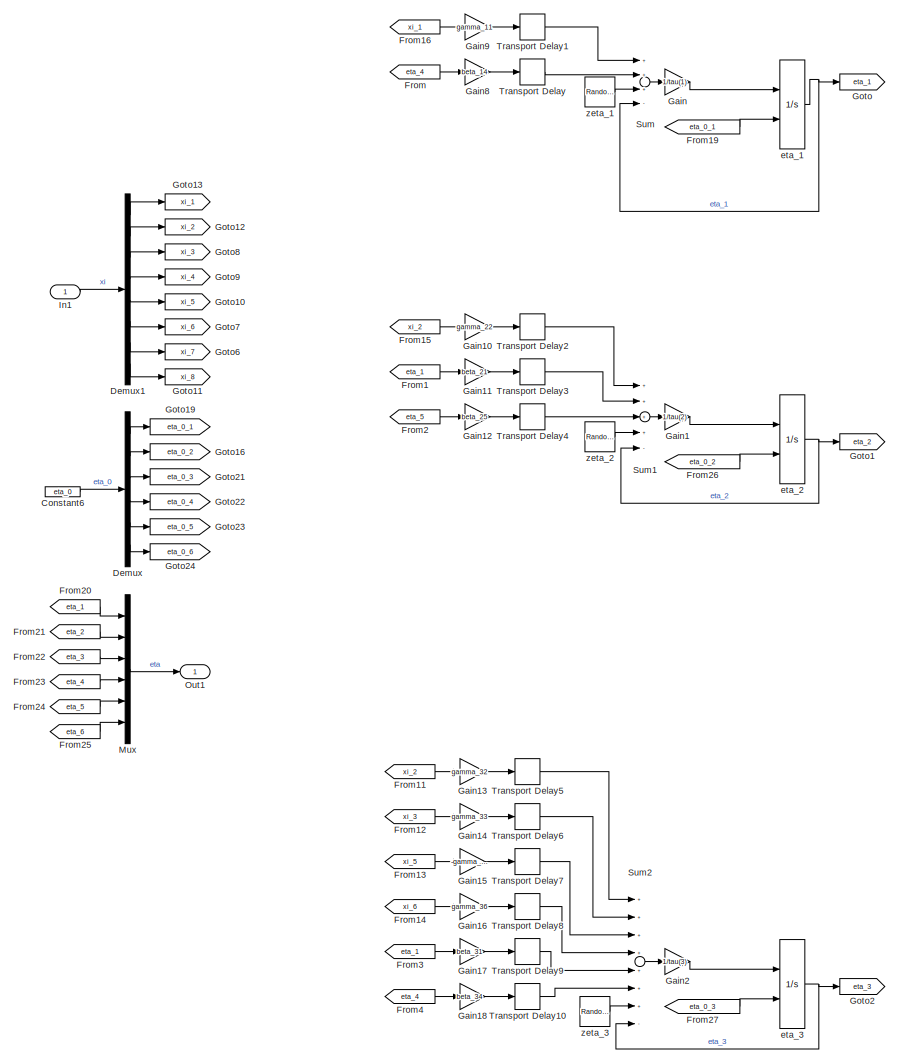
[diagram: root canvas - part 1/2, full width, top band]
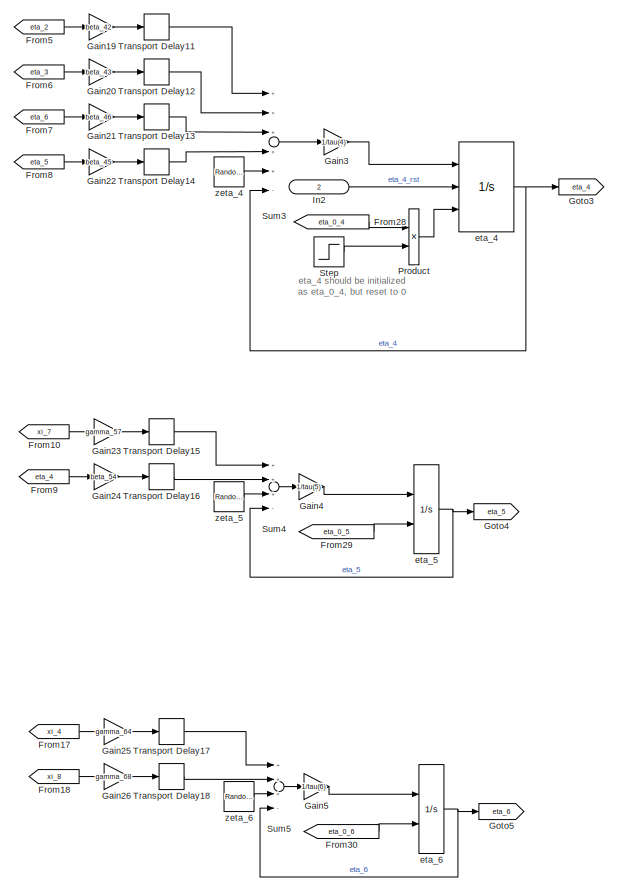
[diagram: root canvas - part 2/2, bottom right region]
MODEL slx_7c5667b295de
KIND model
CONFIG AbsTol = auto
CONFIG EnableMultiTasking = off
CONFIG FixedStep = auto
CONFIG MaxStep = auto
CONFIG MinStep = auto
CONFIG RelTol = 1e-3
CONFIG SampleTimeConstraint = Unconstrained
CONFIG Solver = VariableStepAuto
CONFIG SolverName = VariableStepAuto
CONFIG StartTime = 0.0
CONFIG StopTime = 10.0
BLOCK [Constant] Constant6
  Value = eta_0
BLOCK [Demux] Demux
  DisplayOption = bar
  Outputs = 6
  Ports = [1, 6]
BLOCK [Demux] Demux1
  DisplayOption = bar
  Outputs = 8
  Ports = [1, 8]
BLOCK [From] From
  GotoTag = eta_4
BLOCK [From] From1
  GotoTag = eta_1
BLOCK [From] From10
  GotoTag = xi_7
BLOCK [From] From11
  GotoTag = xi_2
BLOCK [From] From12
  GotoTag = xi_3
BLOCK [From] From13
  GotoTag = xi_5
BLOCK [From] From14
  GotoTag = xi_6
BLOCK [From] From15
  GotoTag = xi_2
BLOCK [From] From16
  GotoTag = xi_1
BLOCK [From] From17
  GotoTag = xi_4
BLOCK [From] From18
  GotoTag = xi_8
BLOCK [From] From19
  GotoTag = eta_0_1
BLOCK [From] From2
  GotoTag = eta_5
BLOCK [From] From20
  GotoTag = eta_1
BLOCK [From] From21
  GotoTag = eta_2
BLOCK [From] From22
  GotoTag = eta_3
BLOCK [From] From23
  GotoTag = eta_4
BLOCK [From] From24
  GotoTag = eta_5
BLOCK [From] From25
  GotoTag = eta_6
BLOCK [From] From26
  GotoTag = eta_0_2
BLOCK [From] From27
  GotoTag = eta_0_3
BLOCK [From] From28
  GotoTag = eta_0_4
BLOCK [From] From29
  GotoTag = eta_0_5
BLOCK [From] From3
  GotoTag = eta_1
BLOCK [From] From30
  GotoTag = eta_0_6
BLOCK [From] From4
  GotoTag = eta_4
BLOCK [From] From5
  GotoTag = eta_2
BLOCK [From] From6
  GotoTag = eta_3
BLOCK [From] From7
  GotoTag = eta_6
BLOCK [From] From8
  GotoTag = eta_5
BLOCK [From] From9
  GotoTag = eta_4
BLOCK [Gain] Gain
  AttributesFormatString = %<Gain>
  Gain = 1/tau(1)
  OutDataTypeStr = Inherit: Inherit via internal rule
  ParamDataTypeStr = Inherit: Inherit via internal rule
  SaturateOnIntegerOverflow = off
BLOCK [Gain] Gain1
  AttributesFormatString = %<Gain>
  Gain = 1/tau(2)
  OutDataTypeStr = Inherit: Inherit via internal rule
  ParamDataTypeStr = Inherit: Inherit via internal rule
  SaturateOnIntegerOverflow = off
BLOCK [Gain] Gain10
  AttributesFormatString = %<Gain>
  Gain = gamma_22
  OutDataTypeStr = Inherit: Inherit via internal rule
  ParamDataTypeStr = Inherit: Inherit via internal rule
  SaturateOnIntegerOverflow = off
BLOCK [Gain] Gain11
  AttributesFormatString = %<Gain>
  Gain = beta_21
  OutDataTypeStr = Inherit: Inherit via internal rule
  ParamDataTypeStr = Inherit: Inherit via internal rule
  SaturateOnIntegerOverflow = off
BLOCK [Gain] Gain12
  AttributesFormatString = %<Gain>
  Gain = beta_25
  OutDataTypeStr = Inherit: Inherit via internal rule
  ParamDataTypeStr = Inherit: Inherit via internal rule
  SaturateOnIntegerOverflow = off
BLOCK [Gain] Gain13
  AttributesFormatString = %<Gain>
  Gain = gamma_32
  OutDataTypeStr = Inherit: Inherit via internal rule
  ParamDataTypeStr = Inherit: Inherit via internal rule
  SaturateOnIntegerOverflow = off
BLOCK [Gain] Gain14
  AttributesFormatString = %<Gain>
  Gain = gamma_33
  OutDataTypeStr = Inherit: Inherit via internal rule
  ParamDataTypeStr = Inherit: Inherit via internal rule
  SaturateOnIntegerOverflow = off
BLOCK [Gain] Gain15
  AttributesFormatString = %<Gain>
  Gain = -gamma_35
  OutDataTypeStr = Inherit: Inherit via internal rule
  ParamDataTypeStr = Inherit: Inherit via internal rule
  SaturateOnIntegerOverflow = off
BLOCK [Gain] Gain16
  AttributesFormatString = %<Gain>
  Gain = gamma_36
  OutDataTypeStr = Inherit: Inherit via internal rule
  ParamDataTypeStr = Inherit: Inherit via internal rule
  SaturateOnIntegerOverflow = off
BLOCK [Gain] Gain17
  AttributesFormatString = %<Gain>
  Gain = beta_31
  OutDataTypeStr = Inherit: Inherit via internal rule
  ParamDataTypeStr = Inherit: Inherit via internal rule
  SaturateOnIntegerOverflow = off
BLOCK [Gain] Gain18
  AttributesFormatString = %<Gain>
  Gain = beta_34
  OutDataTypeStr = Inherit: Inherit via internal rule
  ParamDataTypeStr = Inherit: Inherit via internal rule
  SaturateOnIntegerOverflow = off
BLOCK [Gain] Gain19
  AttributesFormatString = %<Gain>
  Gain = beta_42
  OutDataTypeStr = Inherit: Inherit via internal rule
  ParamDataTypeStr = Inherit: Inherit via internal rule
  SaturateOnIntegerOverflow = off
BLOCK [Gain] Gain2
  AttributesFormatString = %<Gain>
  Gain = 1/tau(3)
  OutDataTypeStr = Inherit: Inherit via internal rule
  ParamDataTypeStr = Inherit: Inherit via internal rule
  SaturateOnIntegerOverflow = off
BLOCK [Gain] Gain20
  AttributesFormatString = %<Gain>
  Gain = beta_43
  OutDataTypeStr = Inherit: Inherit via internal rule
  ParamDataTypeStr = Inherit: Inherit via internal rule
  SaturateOnIntegerOverflow = off
BLOCK [Gain] Gain21
  AttributesFormatString = %<Gain>
  Gain = beta_46
  OutDataTypeStr = Inherit: Inherit via internal rule
  ParamDataTypeStr = Inherit: Inherit via internal rule
  SaturateOnIntegerOverflow = off
BLOCK [Gain] Gain22
  AttributesFormatString = %<Gain>
  Gain = beta_45
  OutDataTypeStr = Inherit: Inherit via internal rule
  ParamDataTypeStr = Inherit: Inherit via internal rule
  SaturateOnIntegerOverflow = off
BLOCK [Gain] Gain23
  AttributesFormatString = %<Gain>
  Gain = gamma_57
  OutDataTypeStr = Inherit: Inherit via internal rule
  ParamDataTypeStr = Inherit: Inherit via internal rule
  SaturateOnIntegerOverflow = off
BLOCK [Gain] Gain24
  AttributesFormatString = %<Gain>
  Gain = beta_54
  OutDataTypeStr = Inherit: Inherit via internal rule
  ParamDataTypeStr = Inherit: Inherit via internal rule
  SaturateOnIntegerOverflow = off
BLOCK [Gain] Gain25
  AttributesFormatString = %<Gain>
  Gain = gamma_64
  OutDataTypeStr = Inherit: Inherit via internal rule
  ParamDataTypeStr = Inherit: Inherit via internal rule
  SaturateOnIntegerOverflow = off
BLOCK [Gain] Gain26
  AttributesFormatString = %<Gain>
  Gain = gamma_68
  OutDataTypeStr = Inherit: Inherit via internal rule
  ParamDataTypeStr = Inherit: Inherit via internal rule
  SaturateOnIntegerOverflow = off
BLOCK [Gain] Gain3
  AttributesFormatString = %<Gain>
  Gain = 1/tau(4)
  OutDataTypeStr = Inherit: Inherit via internal rule
  ParamDataTypeStr = Inherit: Inherit via internal rule
  SaturateOnIntegerOverflow = off
BLOCK [Gain] Gain4
  AttributesFormatString = %<Gain>
  Gain = 1/tau(5)
  OutDataTypeStr = Inherit: Inherit via internal rule
  ParamDataTypeStr = Inherit: Inherit via internal rule
  SaturateOnIntegerOverflow = off
BLOCK [Gain] Gain5
  AttributesFormatString = %<Gain>
  Gain = 1/tau(6)
  OutDataTypeStr = Inherit: Inherit via internal rule
  ParamDataTypeStr = Inherit: Inherit via internal rule
  SaturateOnIntegerOverflow = off
BLOCK [Gain] Gain8
  AttributesFormatString = %<Gain>
  Gain = beta_14
  OutDataTypeStr = Inherit: Inherit via internal rule
  ParamDataTypeStr = Inherit: Inherit via internal rule
  SaturateOnIntegerOverflow = off
BLOCK [Gain] Gain9
  AttributesFormatString = %<Gain>
  Gain = gamma_11
  OutDataTypeStr = Inherit: Inherit via internal rule
  ParamDataTypeStr = Inherit: Inherit via internal rule
  SaturateOnIntegerOverflow = off
BLOCK [Goto] Goto
  GotoTag = eta_1
BLOCK [Goto] Goto1
  GotoTag = eta_2
BLOCK [Goto] Goto10
  GotoTag = xi_5
BLOCK [Goto] Goto11
  GotoTag = xi_8
BLOCK [Goto] Goto12
  GotoTag = xi_2
BLOCK [Goto] Goto13
  GotoTag = xi_1
BLOCK [Goto] Goto16
  GotoTag = eta_0_2
BLOCK [Goto] Goto19
  GotoTag = eta_0_1
BLOCK [Goto] Goto2
  GotoTag = eta_3
BLOCK [Goto] Goto21
  GotoTag = eta_0_3
BLOCK [Goto] Goto22
  GotoTag = eta_0_4
BLOCK [Goto] Goto23
  GotoTag = eta_0_5
BLOCK [Goto] Goto24
  GotoTag = eta_0_6
BLOCK [Goto] Goto3
  GotoTag = eta_4
BLOCK [Goto] Goto4
  GotoTag = eta_5
BLOCK [Goto] Goto5
  GotoTag = eta_6
BLOCK [Goto] Goto6
  GotoTag = xi_7
BLOCK [Goto] Goto7
  GotoTag = xi_6
BLOCK [Goto] Goto8
  GotoTag = xi_3
BLOCK [Goto] Goto9
  GotoTag = xi_4
BLOCK [Inport] In1
  IconDisplay = Signal name
BLOCK [Inport] In2
  IconDisplay = Signal name
  Port = 2
BLOCK [Mux] Mux
  DisplayOption = bar
  Inputs = 6
  Ports = [6, 1]
BLOCK [Outport] Out1
  IconDisplay = Signal name
BLOCK [Product] Product
  InputSameDT = off
  OutDataTypeStr = Inherit: Inherit via internal rule
  Ports = [2, 1]
  RndMeth = Floor
  SaturateOnIntegerOverflow = off
BLOCK [Step] Step
  After = 0
  Before = 1
  SampleTime = 0
  Time = 0.1
BLOCK [Sum] Sum
  InputSameDT = off
  Inputs = +++-
  OutDataTypeStr = Inherit: Inherit via internal rule
  Ports = [4, 1]
  SaturateOnIntegerOverflow = off
BLOCK [Sum] Sum1
  InputSameDT = off
  Inputs = ++++-
  OutDataTypeStr = Inherit: Inherit via internal rule
  Ports = [5, 1]
  SaturateOnIntegerOverflow = off
BLOCK [Sum] Sum2
  InputSameDT = off
  Inputs = +++++++-
  OutDataTypeStr = Inherit: Inherit via internal rule
  Ports = [8, 1]
  SaturateOnIntegerOverflow = off
BLOCK [Sum] Sum3
  InputSameDT = off
  Inputs = +++++-
  OutDataTypeStr = Inherit: Inherit via internal rule
  Ports = [6, 1]
  SaturateOnIntegerOverflow = off
BLOCK [Sum] Sum4
  InputSameDT = off
  Inputs = +++-
  OutDataTypeStr = Inherit: Inherit via internal rule
  Ports = [4, 1]
  SaturateOnIntegerOverflow = off
BLOCK [Sum] Sum5
  InputSameDT = off
  Inputs = +++-
  OutDataTypeStr = Inherit: Inherit via internal rule
  Ports = [4, 1]
  SaturateOnIntegerOverflow = off
BLOCK [TransportDelay] Transport Delay
  AttributesFormatString = %<DelayTime>
  DelayTime = theta(16)
  Ports = [1, 1]
BLOCK [TransportDelay] Transport Delay1
  AttributesFormatString = %<DelayTime>
  DelayTime = theta(1)
  Ports = [1, 1]
BLOCK [TransportDelay] Transport Delay10
  AttributesFormatString = %<DelayTime>
  DelayTime = theta(13)
  Ports = [1, 1]
BLOCK [TransportDelay] Transport Delay11
  AttributesFormatString = %<DelayTime>
  DelayTime = theta(6)
  Ports = [1, 1]
BLOCK [TransportDelay] Transport Delay12
  AttributesFormatString = %<DelayTime>
  DelayTime = theta(8)
  Ports = [1, 1]
BLOCK [TransportDelay] Transport Delay13
  AttributesFormatString = %<DelayTime>
  DelayTime = theta(17)
  Ports = [1, 1]
BLOCK [TransportDelay] Transport Delay14
  AttributesFormatString = %<DelayTime>
  DelayTime = theta(19)
  Ports = [1, 1]
BLOCK [TransportDelay] Transport Delay15
  AttributesFormatString = %<DelayTime>
  DelayTime = theta(15)
  Ports = [1, 1]
BLOCK [TransportDelay] Transport Delay16
  AttributesFormatString = %<DelayTime>
  DelayTime = theta(12)
  Ports = [1, 1]
BLOCK [TransportDelay] Transport Delay17
  AttributesFormatString = %<DelayTime>
  DelayTime = theta(11)
  Ports = [1, 1]
BLOCK [TransportDelay] Transport Delay18
  AttributesFormatString = %<DelayTime>
  DelayTime = theta(18)
  Ports = [1, 1]
BLOCK [TransportDelay] Transport Delay2
  AttributesFormatString = %<DelayTime>
  DelayTime = theta(4)
  Ports = [1, 1]
BLOCK [TransportDelay] Transport Delay3
  AttributesFormatString = %<DelayTime>
  DelayTime = theta(2)
  Ports = [1, 1]
BLOCK [TransportDelay] Transport Delay4
  AttributesFormatString = %<DelayTime>
  DelayTime = theta(14)
  Ports = [1, 1]
BLOCK [TransportDelay] Transport Delay5
  AttributesFormatString = %<DelayTime>
  DelayTime = theta(5)
  Ports = [1, 1]
BLOCK [TransportDelay] Transport Delay6
  AttributesFormatString = %<DelayTime>
  DelayTime = theta(7)
  Ports = [1, 1]
BLOCK [TransportDelay] Transport Delay7
  AttributesFormatString = %<DelayTime>
  DelayTime = theta(9)
  Ports = [1, 1]
BLOCK [TransportDelay] Transport Delay8
  AttributesFormatString = %<DelayTime>
  DelayTime = theta(10)
  Ports = [1, 1]
BLOCK [TransportDelay] Transport Delay9
  AttributesFormatString = %<DelayTime>
  DelayTime = theta(3)
  Ports = [1, 1]
BLOCK [Integrator] eta_1
  ContinuousStateAttributes = 'eta_1'
  InitialCondition = eta_0(1)
  InitialConditionSource = external
  LimitOutput = on
  LowerSaturationLimit = 0
  Ports = [2, 1]
  UpperSaturationLimit = 100
BLOCK [Integrator] eta_2
  ContinuousStateAttributes = 'eta_2'
  InitialCondition = eta_0(1)
  InitialConditionSource = external
  LimitOutput = on
  LowerSaturationLimit = 0
  Ports = [2, 1]
  UpperSaturationLimit = 100
BLOCK [Integrator] eta_3
  ContinuousStateAttributes = 'eta_3'
  InitialCondition = eta_0(1)
  InitialConditionSource = external
  LimitOutput = on
  LowerSaturationLimit = 0
  Ports = [2, 1]
  UpperSaturationLimit = 100
BLOCK [Integrator] eta_4
  ContinuousStateAttributes = 'eta_4'
  ExternalReset = rising
  InitialCondition = eta_0(1)
  InitialConditionSource = external
  LimitOutput = on
  LowerSaturationLimit = 0
  Ports = [3, 1]
  UpperSaturationLimit = 100
BLOCK [Integrator] eta_5
  ContinuousStateAttributes = 'eta_5'
  InitialCondition = eta_0(1)
  InitialConditionSource = external
  LimitOutput = on
  LowerSaturationLimit = 0
  Ports = [2, 1]
  UpperSaturationLimit = 100
BLOCK [Integrator] eta_6
  ContinuousStateAttributes = 'eta_6'
  InitialCondition = eta_0(1)
  InitialConditionSource = external
  LimitOutput = on
  LowerSaturationLimit = 0
  Ports = [2, 1]
  UpperSaturationLimit = 100
BLOCK [RandomNumber] zeta_1
  SampleTime = 0.1
  Variance = zeta_var
BLOCK [RandomNumber] zeta_2
  SampleTime = 0.1
  Variance = zeta_var
BLOCK [RandomNumber] zeta_3
  SampleTime = 0.1
  Variance = zeta_var
BLOCK [RandomNumber] zeta_4
  SampleTime = 0.1
  Variance = zeta_var
BLOCK [RandomNumber] zeta_5
  SampleTime = 0.1
  Variance = zeta_var
BLOCK [RandomNumber] zeta_6
  SampleTime = 0.1
  Variance = zeta_var
ANNOTATION (root): eta_4 should be initialized as eta_0_4, but reset to 0
LINE Constant6:1 -> Demux:1
LINE Demux1:1 -> Goto13:1
LINE Demux1:2 -> Goto12:1
LINE Demux1:3 -> Goto8:1
LINE Demux1:4 -> Goto9:1
LINE Demux1:5 -> Goto10:1
LINE Demux1:6 -> Goto7:1
LINE Demux1:7 -> Goto6:1
LINE Demux1:8 -> Goto11:1
LINE Demux:1 -> Goto19:1
LINE Demux:2 -> Goto16:1
LINE Demux:3 -> Goto21:1
LINE Demux:4 -> Goto22:1
LINE Demux:5 -> Goto23:1
LINE Demux:6 -> Goto24:1
LINE From10:1 -> Gain23:1
LINE From11:1 -> Gain13:1
LINE From12:1 -> Gain14:1
LINE From13:1 -> Gain15:1
LINE From14:1 -> Gain16:1
LINE From15:1 -> Gain10:1
LINE From16:1 -> Gain9:1
LINE From17:1 -> Gain25:1
LINE From18:1 -> Gain26:1
LINE From19:1 -> eta_1:2
LINE From1:1 -> Gain11:1
LINE From20:1 -> Mux:1
LINE From21:1 -> Mux:2
LINE From22:1 -> Mux:3
LINE From23:1 -> Mux:4
LINE From24:1 -> Mux:5
LINE From25:1 -> Mux:6
LINE From26:1 -> eta_2:2
LINE From27:1 -> eta_3:2
LINE From28:1 -> Product:1
LINE From29:1 -> eta_5:2
LINE From2:1 -> Gain12:1
LINE From30:1 -> eta_6:2
LINE From3:1 -> Gain17:1
LINE From4:1 -> Gain18:1
LINE From5:1 -> Gain19:1
LINE From6:1 -> Gain20:1
LINE From7:1 -> Gain21:1
LINE From8:1 -> Gain22:1
LINE From9:1 -> Gain24:1
LINE From:1 -> Gain8:1
LINE Gain10:1 -> Transport Delay2:1
LINE Gain11:1 -> Transport Delay3:1
LINE Gain12:1 -> Transport Delay4:1
LINE Gain13:1 -> Transport Delay5:1
LINE Gain14:1 -> Transport Delay6:1
LINE Gain15:1 -> Transport Delay7:1
LINE Gain16:1 -> Transport Delay8:1
LINE Gain17:1 -> Transport Delay9:1
LINE Gain18:1 -> Transport Delay10:1
LINE Gain19:1 -> Transport Delay11:1
LINE Gain1:1 -> eta_2:1
LINE Gain20:1 -> Transport Delay12:1
LINE Gain21:1 -> Transport Delay13:1
LINE Gain22:1 -> Transport Delay14:1
LINE Gain23:1 -> Transport Delay15:1
LINE Gain24:1 -> Transport Delay16:1
LINE Gain25:1 -> Transport Delay17:1
LINE Gain26:1 -> Transport Delay18:1
LINE Gain2:1 -> eta_3:1
LINE Gain3:1 -> eta_4:1
LINE Gain4:1 -> eta_5:1
LINE Gain5:1 -> eta_6:1
LINE Gain8:1 -> Transport Delay:1
LINE Gain9:1 -> Transport Delay1:1
LINE Gain:1 -> eta_1:1
LINE In1:1 -> Demux1:1
LINE In2:1 -> eta_4:2
LINE Mux:1 -> Out1:1
LINE Product:1 -> eta_4:3
LINE Step:1 -> Product:2
LINE Sum1:1 -> Gain1:1
LINE Sum2:1 -> Gain2:1
LINE Sum3:1 -> Gain3:1
LINE Sum4:1 -> Gain4:1
LINE Sum5:1 -> Gain5:1
LINE Sum:1 -> Gain:1
LINE Transport Delay10:1 -> Sum2:6
LINE Transport Delay11:1 -> Sum3:1
LINE Transport Delay12:1 -> Sum3:2
LINE Transport Delay13:1 -> Sum3:3
LINE Transport Delay14:1 -> Sum3:4
LINE Transport Delay15:1 -> Sum4:1
LINE Transport Delay16:1 -> Sum4:2
LINE Transport Delay17:1 -> Sum5:1
LINE Transport Delay18:1 -> Sum5:2
LINE Transport Delay1:1 -> Sum:1
LINE Transport Delay2:1 -> Sum1:1
LINE Transport Delay3:1 -> Sum1:2
LINE Transport Delay4:1 -> Sum1:3
LINE Transport Delay5:1 -> Sum2:1
LINE Transport Delay6:1 -> Sum2:2
LINE Transport Delay7:1 -> Sum2:3
LINE Transport Delay8:1 -> Sum2:4
LINE Transport Delay9:1 -> Sum2:5
LINE Transport Delay:1 -> Sum:2
NET eta_1:1 -> Goto:1, Sum:4
NET eta_2:1 -> Goto1:1, Sum1:5
NET eta_3:1 -> Goto2:1, Sum2:8
NET eta_4:1 -> Goto3:1, Sum3:6
NET eta_5:1 -> Goto4:1, Sum4:4
NET eta_6:1 -> Goto5:1, Sum5:4
LINE zeta_1:1 -> Sum:3
LINE zeta_2:1 -> Sum1:4
LINE zeta_3:1 -> Sum2:7
LINE zeta_4:1 -> Sum3:5
LINE zeta_5:1 -> Sum4:3
LINE zeta_6:1 -> Sum5:3
note: NET lines group one-source signal fan-out (src -> all destinations, sorted); 1:1 wires keep LINE
